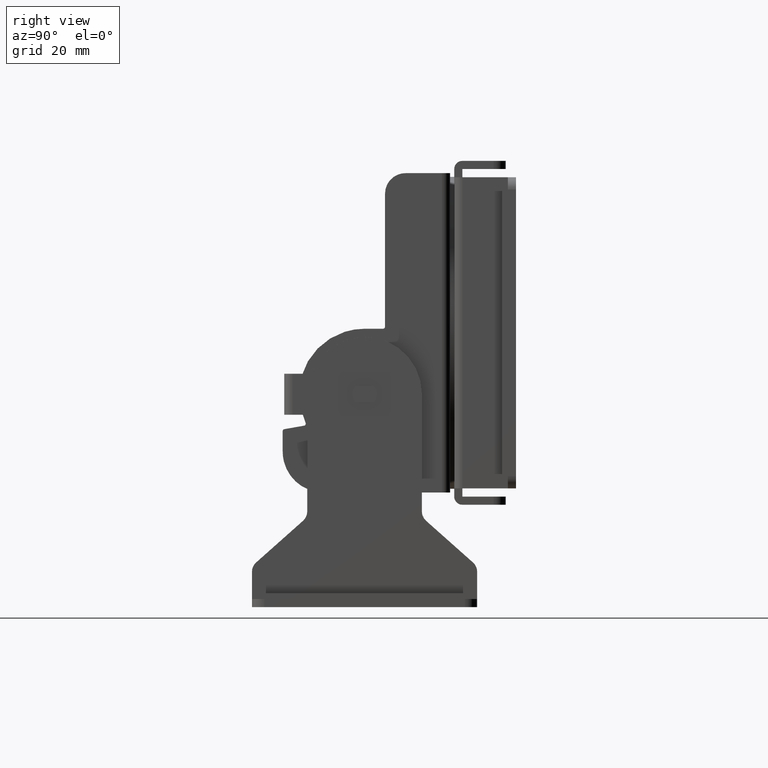
[diagram: clean part render]
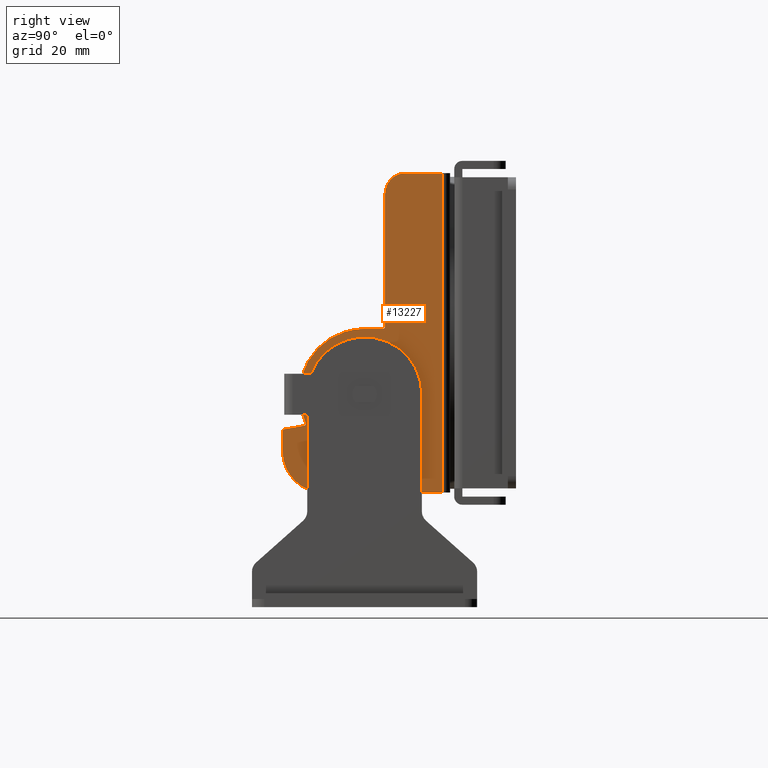
[diagram: same view with one face highlighted and labeled with its STEP entity id]
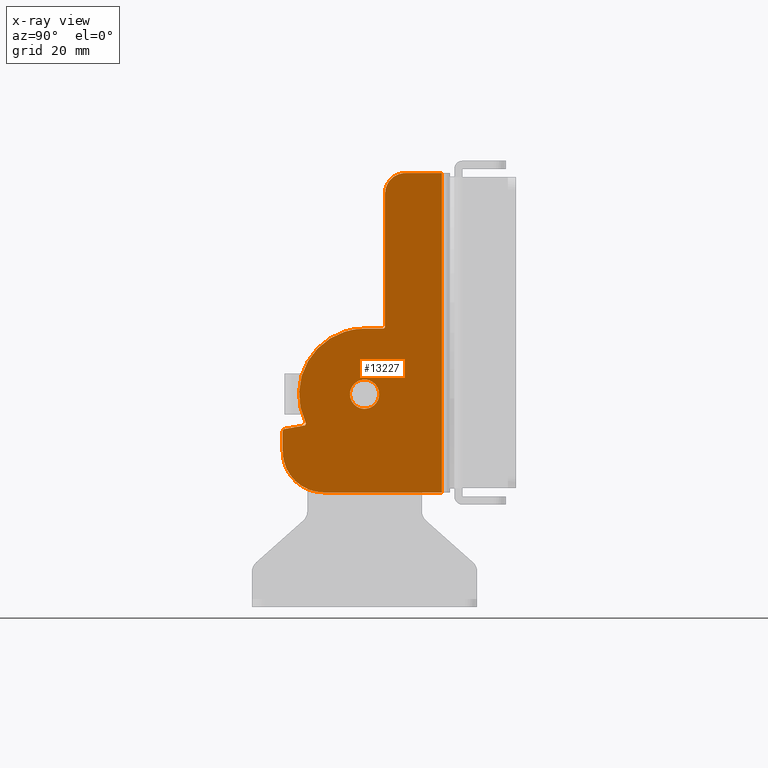
[diagram: x-ray of the same camera — body ghosted, the highlighted face saturated]
A machine part, right view. The second image highlights one B-rep face of the part: STEP entity #13227.
The next image is the same camera in x-ray: the body ghosted, the highlighted face saturated — about 0% of this face is hidden behind the body in this view.
In plain terms, the highlighted face is a freeform B-spline surface patch.
Its self-contained STEP definition (entity closure, byte-faithful):
#12350=CARTESIAN_POINT('',(42.0,-18.100000000000001,39.0));
#12351=VERTEX_POINT('',#12350);
#12366=CARTESIAN_POINT('',(42.0,-18.100000000000001,-39.0));
#12367=VERTEX_POINT('',#12366);
#12368=CARTESIAN_POINT('',(42.0,-18.100000000000001,-39.0));
#12369=CARTESIAN_POINT('',(42.0,-18.100000000000001,39.0));
#12370=QUASI_UNIFORM_CURVE('',1,(#12368,#12369),.UNSPECIFIED.,.F.,.U.);
#12371=EDGE_CURVE('',#12367,#12351,#12370,.T.);
#12927=CARTESIAN_POINT('',(42.000000000001613,-34.364233000642528,-12.584764558349400));
#12928=VERTEX_POINT('',#12927);
#12934=CARTESIAN_POINT('',(42.000000000001613,-37.0,-11.424999999999701));
#12935=VERTEX_POINT('',#12934);
#12936=CARTESIAN_POINT('',(42.000000000001613,-34.364233000642528,-12.584764558349400));
#12937=CARTESIAN_POINT('',(42.000000000001599,-34.520649569606618,-12.414041309702959));
#12938=CARTESIAN_POINT('',(42.000000000001663,-34.901387640099053,-12.072000829233010));
#12939=CARTESIAN_POINT('',(42.000000000001563,-35.535953456442762,-11.710239822312550));
#12940=CARTESIAN_POINT('',(42.000000000001769,-36.259063571028562,-11.477932296562960));
#12941=CARTESIAN_POINT('',(42.000000000001663,-36.737577191046178,-11.424952675671760));
#12942=CARTESIAN_POINT('',(42.000000000001613,-37.0,-11.424999999999701));
#12943=B_SPLINE_CURVE_WITH_KNOTS('',3,(#12936,#12937,#12938,#12939,#12940,#12941,#12942),.UNSPECIFIED.,.F.,.U.,(4,1,1,1,4),(0.000000047398276,0.694642274719024,1.528188103257058,2.176546381550359,2.963808261061060),.UNSPECIFIED.);
#12944=EDGE_CURVE('',#12928,#12935,#12943,.T.);
#12946=CARTESIAN_POINT('',(42.000000000001613,-40.574999999998937,-15.000002759314500));
#12947=VERTEX_POINT('',#12946);
#12948=CARTESIAN_POINT('',(42.000000000001613,-37.0,-11.424999999999701));
#12949=CARTESIAN_POINT('',(42.000000000001663,-37.321733151327422,-11.424902701430380));
#12950=CARTESIAN_POINT('',(42.000000000001592,-37.877376197659700,-11.500539366637749));
#12951=CARTESIAN_POINT('',(42.000000000001613,-38.425786291223993,-11.712105146281640));
#12952=CARTESIAN_POINT('',(42.000000000001613,-38.672506413286563,-11.839970784096250));
#12953=CARTESIAN_POINT('',(42.000000000001592,-38.723642837944027,-11.868379214793590));
#12954=CARTESIAN_POINT('',(42.000000000002352,-38.762153720231041,-11.889359614253211));
#12955=CARTESIAN_POINT('',(42.000000000001400,-39.155439516779950,-12.114976209713509));
#12956=CARTESIAN_POINT('',(42.000000000002139,-39.765722437845227,-12.635613387642870));
#12957=CARTESIAN_POINT('',(42.000000000000902,-40.411854359208533,-13.713376463490111));
#12958=CARTESIAN_POINT('',(42.000000000001933,-40.575473905983671,-14.531984908850690));
#12959=CARTESIAN_POINT('',(42.000000000001613,-40.574999999998937,-15.000002759314500));
#12960=B_SPLINE_CURVE_WITH_KNOTS('',3,(#12948,#12949,#12950,#12951,#12952,#12953,#12954,#12955,#12956,#12957,#12958,#12959),.UNSPECIFIED.,.F.,.U.,(4,1,1,1,1,1,1,1,1,4),(0.000145676831603,0.965319371861331,1.667278674860551,1.755024453281273,1.798897322327655,1.842770191374036,1.886626959833046,3.158885052871876,4.211819607039936,5.615706503458462),.UNSPECIFIED.);
#12961=EDGE_CURVE('',#12935,#12947,#12960,.T.);
#12963=CARTESIAN_POINT('',(42.000000000001613,-39.635766999357472,-17.415235441650001));
#12964=VERTEX_POINT('',#12963);
#12965=CARTESIAN_POINT('',(42.000000000001613,-40.574999999998937,-15.000002759314500));
#12966=CARTESIAN_POINT('',(42.000000000001627,-40.575244794812583,-15.386756023391870));
#12967=CARTESIAN_POINT('',(42.000000000001528,-40.470851282199384,-16.021931012130270));
#12968=CARTESIAN_POINT('',(42.000000000001741,-40.101234828961822,-16.830186273078510));
#12969=CARTESIAN_POINT('',(42.000000000001492,-39.803750124989591,-17.231968071791051));
#12970=CARTESIAN_POINT('',(42.000000000001613,-39.635766999357472,-17.415235441650001));
#12971=B_SPLINE_CURVE_WITH_KNOTS('',3,(#12965,#12966,#12967,#12968,#12969,#12970),.UNSPECIFIED.,.F.,.U.,(4,1,1,4),(0.000000016020715,1.160192675315129,1.906029000774625,2.651866464479555),.UNSPECIFIED.);
#12972=EDGE_CURVE('',#12947,#12964,#12971,.T.);
#13013=CARTESIAN_POINT('',(42.000000000001613,-37.0,-18.574999999999701));
#13014=VERTEX_POINT('',#13013);
#13015=CARTESIAN_POINT('',(42.000000000001613,-39.635766999357472,-17.415235441650001));
#13016=CARTESIAN_POINT('',(42.000000000001599,-39.458505631949237,-17.608731208357579));
#13017=CARTESIAN_POINT('',(42.000000000001648,-39.014397550694618,-17.997390747255100));
#13018=CARTESIAN_POINT('',(42.000000000001570,-38.126759355537160,-18.451572953965041));
#13019=CARTESIAN_POINT('',(42.000000000001563,-37.401362000490373,-18.575214413705091));
#13020=CARTESIAN_POINT('',(42.000000000001613,-37.0,-18.574999999999701));
#13021=B_SPLINE_CURVE_WITH_KNOTS('',3,(#13015,#13016,#13017,#13018,#13019,#13020),.UNSPECIFIED.,.F.,.U.,(4,1,1,4),(0.000000047400349,0.787261926910855,1.759750560364950,2.963808261061066),.UNSPECIFIED.);
#13022=EDGE_CURVE('',#12964,#13014,#13021,.T.);
#13024=CARTESIAN_POINT('',(42.000000000001613,-33.425000000001063,-14.999997240684900));
#13025=VERTEX_POINT('',#13024);
#13026=CARTESIAN_POINT('',(42.000000000001613,-37.0,-18.574999999999701));
#13027=CARTESIAN_POINT('',(42.000000000001592,-36.766018954667629,-18.575022306110871));
#13028=CARTESIAN_POINT('',(42.000000000001712,-36.210315786105021,-18.520268369036302));
#13029=CARTESIAN_POINT('',(42.000000000001570,-35.652064525227942,-18.328422787678029));
#13030=CARTESIAN_POINT('',(42.000000000001627,-35.327500444928177,-18.160011798816630));
#13031=CARTESIAN_POINT('',(42.000000000001592,-35.276357020023390,-18.131621047159879));
#13032=CARTESIAN_POINT('',(42.000000000001663,-35.237812982594363,-18.110681977199640));
#13033=CARTESIAN_POINT('',(42.000000000003077,-34.920744387556823,-17.928607068405039));
#13034=CARTESIAN_POINT('',(42.000000000000583,-34.526931444811702,-17.617072231540110));
#13035=CARTESIAN_POINT('',(42.000000000001833,-34.064714501443113,-17.067731081041089));
#13036=CARTESIAN_POINT('',(42.000000000001499,-33.747395072167372,-16.538368657041900));
#13037=CARTESIAN_POINT('',(42.000000000001712,-33.489974081119357,-15.818905136062140));
#13038=CARTESIAN_POINT('',(42.000000000001613,-33.424930956278473,-15.292471553343621));
#13039=CARTESIAN_POINT('',(42.000000000001613,-33.425000000001063,-14.999997240684900));
#13040=B_SPLINE_CURVE_WITH_KNOTS('',3,(#13026,#13027,#13028,#13029,#13030,#13031,#13032,#13033,#13034,#13035,#13036,#13037,#13038,#13039),.UNSPECIFIED.,.F.,.U.,(4,1,1,1,1,1,1,1,1,1,1,4),(0.000145676828876,0.702093495563166,1.667278674858886,1.755024453279670,1.798897322326084,1.842770191372500,1.886626959831524,2.895667558494016,3.334368985992610,4.036327999064127,4.738293263126456,5.615706503458471),.UNSPECIFIED.);
#13041=EDGE_CURVE('',#13014,#13025,#13040,.T.);
#13043=CARTESIAN_POINT('',(42.000000000001613,-33.425000000001063,-14.999997240684900));
#13044=CARTESIAN_POINT('',(42.000000000001577,-33.424753973925441,-14.613242926011701));
#13045=CARTESIAN_POINT('',(42.000000000001677,-33.529149612588697,-13.978070091075949));
#13046=CARTESIAN_POINT('',(42.000000000001599,-33.898764834737982,-13.169812928794400));
#13047=CARTESIAN_POINT('',(42.000000000001592,-34.196249605457517,-12.768033517893970));
#13048=CARTESIAN_POINT('',(42.000000000001613,-34.364233000642528,-12.584764558349400));
#13049=B_SPLINE_CURVE_WITH_KNOTS('',3,(#13043,#13044,#13045,#13046,#13047,#13048),.UNSPECIFIED.,.F.,.U.,(4,1,1,4),(0.000000016021461,1.160192675315420,1.906029000774754,2.651866464479545),.UNSPECIFIED.);
#13050=EDGE_CURVE('',#13025,#12928,#13049,.T.);
#13084=CARTESIAN_POINT('',(42.0,-16.156945075395750,42.896099848820867));
#13085=CARTESIAN_POINT('',(42.0,-58.943055967983568,42.896099848820882));
#13086=CARTESIAN_POINT('',(42.0,-16.156945075395750,-42.896101940943900));
#13087=CARTESIAN_POINT('',(42.0,-58.943055967983568,-42.896101940943900));
#13088=B_SPLINE_SURFACE_WITH_KNOTS('',1,1,((#13084,#13086),(#13085,#13087)),.UNSPECIFIED.,.F.,.F.,.U.,(2,2),(2,2),(0.0,42.786110892587807),(0.0,85.792201789764789),.UNSPECIFIED.);
#13089=CARTESIAN_POINT('',(42.0,-47.0,-39.0));
#13090=VERTEX_POINT('',#13089);
#13091=CARTESIAN_POINT('',(42.0,-18.100000000000001,-39.0));
#13092=CARTESIAN_POINT('',(42.0,-47.0,-39.0));
#13093=QUASI_UNIFORM_CURVE('',1,(#13091,#13092),.UNSPECIFIED.,.F.,.U.);
#13094=EDGE_CURVE('',#12367,#13090,#13093,.T.);
#13095=ORIENTED_EDGE('',*,*,#13094,.F.);
#13096=ORIENTED_EDGE('',*,*,#12371,.T.);
#13097=CARTESIAN_POINT('',(42.0,-27.0,39.0));
#13098=VERTEX_POINT('',#13097);
#13099=CARTESIAN_POINT('',(42.0,-27.0,39.0));
#13100=CARTESIAN_POINT('',(42.0,-18.100000000000001,39.0));
#13101=QUASI_UNIFORM_CURVE('',1,(#13099,#13100),.UNSPECIFIED.,.F.,.U.);
#13102=EDGE_CURVE('',#13098,#12351,#13101,.T.);
#13103=ORIENTED_EDGE('',*,*,#13102,.F.);
#13104=CARTESIAN_POINT('',(42.0,-32.0,34.0));
#13105=VERTEX_POINT('',#13104);
#13106=CARTESIAN_POINT('',(42.0,-32.0,34.0));
#13107=CARTESIAN_POINT('',(41.999999999999908,-32.000471422047838,34.593217900195633));
#13108=CARTESIAN_POINT('',(42.000000000000291,-31.830511484557210,35.533687402936913));
#13109=CARTESIAN_POINT('',(41.999999999999879,-31.236780813074461,36.731323727593882));
#13110=CARTESIAN_POINT('',(41.999999999999979,-30.562571433023230,37.563222292134782));
#13111=CARTESIAN_POINT('',(41.999999999999943,-29.824438476396441,38.153895553238748));
#13112=CARTESIAN_POINT('',(42.000000000000263,-29.019014009849180,38.603703977239711));
#13113=CARTESIAN_POINT('',(41.999999999999488,-28.104450465614288,38.918334161760832));
#13114=CARTESIAN_POINT('',(42.000000000000242,-27.368156349836880,39.000052217902990));
#13115=CARTESIAN_POINT('',(42.0,-27.0,39.0));
#13116=B_SPLINE_CURVE_WITH_KNOTS('',3,(#13106,#13107,#13108,#13109,#13110,#13111,#13112,#13113,#13114,#13115),.UNSPECIFIED.,.F.,.U.,(4,1,1,1,1,1,1,4),(0.000000144701420,1.779425526116112,2.822556969691546,3.988331252691235,4.970105392405465,5.645082748623809,6.749562793633396,7.854030914386189),.UNSPECIFIED.);
#13117=EDGE_CURVE('',#13105,#13098,#13116,.T.);
#13118=ORIENTED_EDGE('',*,*,#13117,.F.);
#13119=CARTESIAN_POINT('',(42.0,-32.0,1.500000000000000));
#13120=VERTEX_POINT('',#13119);
#13121=CARTESIAN_POINT('',(42.0,-32.0,1.500000000000000));
#13122=CARTESIAN_POINT('',(42.0,-32.0,34.0));
#13123=QUASI_UNIFORM_CURVE('',1,(#13121,#13122),.UNSPECIFIED.,.F.,.U.);
#13124=EDGE_CURVE('',#13120,#13105,#13123,.T.);
#13125=ORIENTED_EDGE('',*,*,#13124,.F.);
#13126=CARTESIAN_POINT('',(42.0,-32.500000000000000,1.000000000000200));
#13127=VERTEX_POINT('',#13126);
#13128=CARTESIAN_POINT('',(42.0,-32.0,1.500000000000000));
#13129=CARTESIAN_POINT('',(42.000000000000057,-31.999842560690819,1.418156430281907));
#13130=CARTESIAN_POINT('',(41.999999999999879,-32.034914494064743,1.279247508861019));
#13131=CARTESIAN_POINT('',(42.000000000000099,-32.152440023915972,1.128717921883740));
#13132=CARTESIAN_POINT('',(41.999999999999901,-32.303733701533837,1.027631322171753));
#13133=CARTESIAN_POINT('',(42.000000000000078,-32.426343770576132,0.999886163972681));
#13134=CARTESIAN_POINT('',(42.0,-32.500000000000000,1.000000000000200));
#13135=B_SPLINE_CURVE_WITH_KNOTS('',3,(#13128,#13129,#13130,#13131,#13132,#13133,#13134),.UNSPECIFIED.,.F.,.U.,(4,1,1,1,4),(0.000000378754822,0.245466615866437,0.417262450505359,0.564556063266664,0.785476941726930),.UNSPECIFIED.);
#13136=EDGE_CURVE('',#13120,#13127,#13135,.T.);
#13137=ORIENTED_EDGE('',*,*,#13136,.T.);
#13138=CARTESIAN_POINT('',(42.0,-37.0,1.0));
#13139=VERTEX_POINT('',#13138);
#13140=CARTESIAN_POINT('',(42.0,-37.0,1.0));
#13141=CARTESIAN_POINT('',(42.0,-32.500000000000000,1.000000000000200));
#13142=QUASI_UNIFORM_CURVE('',1,(#13140,#13141),.UNSPECIFIED.,.F.,.U.);
#13143=EDGE_CURVE('',#13139,#13127,#13142,.T.);
#13144=ORIENTED_EDGE('',*,*,#13143,.F.);
#13145=CARTESIAN_POINT('',(42.0,-51.401863391583703,-21.970389576642049));
#13146=VERTEX_POINT('',#13145);
#13147=CARTESIAN_POINT('',(42.0,-51.401863391583703,-21.970389576642049));
#13148=CARTESIAN_POINT('',(41.999999999999957,-51.732141526409769,-21.288053704430371));
#13149=CARTESIAN_POINT('',(42.000000000000078,-52.326771160536062,-19.797868078490950));
#13150=CARTESIAN_POINT('',(41.999999999999950,-52.923122082962131,-17.247330328969060));
#13151=CARTESIAN_POINT('',(41.999999999999993,-53.095897547358831,-14.163832285243210));
#13152=CARTESIAN_POINT('',(42.000000000000028,-52.610285948871969,-11.021702576395031));
#13153=CARTESIAN_POINT('',(41.999999999999993,-51.626320615444691,-8.365678442747846));
#13154=CARTESIAN_POINT('',(41.999999999999773,-50.442715833058983,-6.223311091590798));
#13155=CARTESIAN_POINT('',(42.000000000000242,-48.965949318142307,-4.267990275892649));
#13156=CARTESIAN_POINT('',(41.999999999999822,-47.277533662569837,-2.669403694874242));
#13157=CARTESIAN_POINT('',(42.000000000000298,-45.492586995709878,-1.395486821707994));
#13158=CARTESIAN_POINT('',(41.999999999999972,-43.678902882971130,-0.401217760903279));
#13159=CARTESIAN_POINT('',(42.000000000000057,-41.662484891688727,0.356138072547970));
#13160=CARTESIAN_POINT('',(41.999999999999957,-39.400566381757152,0.873950185790265));
#13161=CARTESIAN_POINT('',(42.000000000000007,-37.884431918821718,1.000069304793295));
#13162=CARTESIAN_POINT('',(42.0,-37.0,1.0));
#13163=B_SPLINE_CURVE_WITH_KNOTS('',3,(#13147,#13148,#13149,#13150,#13151,#13152,#13153,#13154,#13155,#13156,#13157,#13158,#13159,#13160,#13161,#13162),.UNSPECIFIED.,.F.,.U.,(4,1,1,1,1,1,1,1,1,1,1,1,1,4),(0.000000131263342,2.274210141419324,4.801196840234578,7.833548650835777,11.497657153703040,14.277295402518540,16.298788371374709,18.825780085986409,21.605421418971019,23.247951205695770,25.395870864071650,27.796493349791881,29.691687227976090,32.344978162215298),.UNSPECIFIED.);
#13164=EDGE_CURVE('',#13146,#13139,#13163,.T.);
#13165=ORIENTED_EDGE('',*,*,#13164,.F.);
#13166=CARTESIAN_POINT('',(42.0,-51.765097533737503,-22.680618127418398));
#13167=VERTEX_POINT('',#13166);
#13168=CARTESIAN_POINT('',(42.0,-51.401863391583703,-21.970389576642049));
#13169=CARTESIAN_POINT('',(42.000000000000007,-51.368217161372300,-22.039624619190160));
#13170=CARTESIAN_POINT('',(41.999999999999993,-51.333918351282868,-22.193918109213460));
#13171=CARTESIAN_POINT('',(42.000000000000043,-51.388276865223979,-22.414517302461562));
#13172=CARTESIAN_POINT('',(41.999999999999972,-51.535548027772542,-22.598494298271380));
#13173=CARTESIAN_POINT('',(42.000000000000050,-51.679758212925279,-22.665787783282749));
#13174=CARTESIAN_POINT('',(42.0,-51.765097533737503,-22.680618127418398));
#13175=B_SPLINE_CURVE_WITH_KNOTS('',3,(#13168,#13169,#13170,#13171,#13172,#13173,#13174),.UNSPECIFIED.,.F.,.U.,(4,1,1,1,4),(0.000000319221445,0.230911361204582,0.461819943260478,0.663858550791140,0.923639507080175),.UNSPECIFIED.);
#13176=EDGE_CURVE('',#13146,#13167,#13175,.T.);
#13177=ORIENTED_EDGE('',*,*,#13176,.T.);
#13178=CARTESIAN_POINT('',(42.0,-56.586824088833602,-23.530818612680498));
#13179=VERTEX_POINT('',#13178);
#13180=CARTESIAN_POINT('',(42.0,-56.586824088833602,-23.530818612680498));
#13181=CARTESIAN_POINT('',(42.0,-51.765097533737503,-22.680618127418398));
#13182=QUASI_UNIFORM_CURVE('',1,(#13180,#13181),.UNSPECIFIED.,.F.,.U.);
#13183=EDGE_CURVE('',#13179,#13167,#13182,.T.);
#13184=ORIENTED_EDGE('',*,*,#13183,.F.);
#13185=CARTESIAN_POINT('',(42.0,-57.0,-24.023222489186601));
#13186=VERTEX_POINT('',#13185);
#13187=CARTESIAN_POINT('',(42.0,-57.0,-24.023222489186601));
#13188=CARTESIAN_POINT('',(42.000000000000057,-57.000152955929053,-23.943192638903440));
#13189=CARTESIAN_POINT('',(41.999999999999929,-56.966102359696563,-23.805185438149369));
#13190=CARTESIAN_POINT('',(42.000000000000050,-56.822262181461667,-23.617687071095641));
#13191=CARTESIAN_POINT('',(41.999999999999993,-56.680066854812893,-23.546938031424130));
#13192=CARTESIAN_POINT('',(42.0,-56.586824088833602,-23.530818612680498));
#13193=B_SPLINE_CURVE_WITH_KNOTS('',3,(#13187,#13188,#13189,#13190,#13191,#13192),.UNSPECIFIED.,.F.,.U.,(4,1,1,4),(0.000000381073022,0.240018554814931,0.414540718338284,0.698187040400897),.UNSPECIFIED.);
#13194=EDGE_CURVE('',#13186,#13179,#13193,.T.);
#13195=ORIENTED_EDGE('',*,*,#13194,.F.);
#13196=CARTESIAN_POINT('',(42.0,-57.0,-29.0));
#13197=VERTEX_POINT('',#13196);
#13198=CARTESIAN_POINT('',(42.0,-57.0,-29.0));
#13199=CARTESIAN_POINT('',(42.0,-57.0,-24.023222489186601));
#13200=QUASI_UNIFORM_CURVE('',1,(#13198,#13199),.UNSPECIFIED.,.F.,.U.);
#13201=EDGE_CURVE('',#13197,#13186,#13200,.T.);
#13202=ORIENTED_EDGE('',*,*,#13201,.F.);
#13203=CARTESIAN_POINT('',(42.0,-47.0,-39.0));
#13204=CARTESIAN_POINT('',(42.000000000000050,-47.981801160416182,-39.000465238525607));
#13205=CARTESIAN_POINT('',(41.999999999999993,-49.617776367406933,-38.756996809211053));
#13206=CARTESIAN_POINT('',(41.999999999999957,-51.630424297717127,-37.923220492418700));
#13207=CARTESIAN_POINT('',(42.000000000000057,-53.253594966692923,-36.881416607242592));
#13208=CARTESIAN_POINT('',(41.999999999999851,-54.565107119108113,-35.632777391675887));
#13209=CARTESIAN_POINT('',(42.000000000000242,-55.494549934898608,-34.329895284838869));
#13210=CARTESIAN_POINT('',(41.999999999999993,-56.131647762091987,-33.137947904231957));
#13211=CARTESIAN_POINT('',(42.000000000000092,-56.781321019558227,-31.454154501776792));
#13212=CARTESIAN_POINT('',(41.999999999999929,-57.000462540860077,-29.981806556515458));
#13213=CARTESIAN_POINT('',(42.0,-57.0,-29.0));
#13214=B_SPLINE_CURVE_WITH_KNOTS('',3,(#13203,#13204,#13205,#13206,#13207,#13208,#13209,#13210,#13211,#13212,#13213),.UNSPECIFIED.,.F.,.U.,(4,1,1,1,1,1,1,1,4),(0.000000081123437,2.945251936496936,4.908781993559348,6.504152964527455,8.713063262384692,10.308414291086059,11.290163247550520,12.762812023990440,15.708061828753010),.UNSPECIFIED.);
#13215=EDGE_CURVE('',#13090,#13197,#13214,.T.);
#13216=ORIENTED_EDGE('',*,*,#13215,.F.);
#13217=EDGE_LOOP('',(#13095,#13096,#13103,#13118,#13125,#13137,#13144,#13165,#13177,#13184,#13195,#13202,#13216));
#13218=FACE_OUTER_BOUND('',#13217,.T.);
#13219=ORIENTED_EDGE('',*,*,#13041,.F.);
#13220=ORIENTED_EDGE('',*,*,#13022,.F.);
#13221=ORIENTED_EDGE('',*,*,#12972,.F.);
#13222=ORIENTED_EDGE('',*,*,#12961,.F.);
#13223=ORIENTED_EDGE('',*,*,#12944,.F.);
#13224=ORIENTED_EDGE('',*,*,#13050,.F.);
#13225=EDGE_LOOP('',(#13219,#13220,#13221,#13222,#13223,#13224));
#13226=FACE_BOUND('',#13225,.T.);
#13227=ADVANCED_FACE('',(#13218,#13226),#13088,.T.);